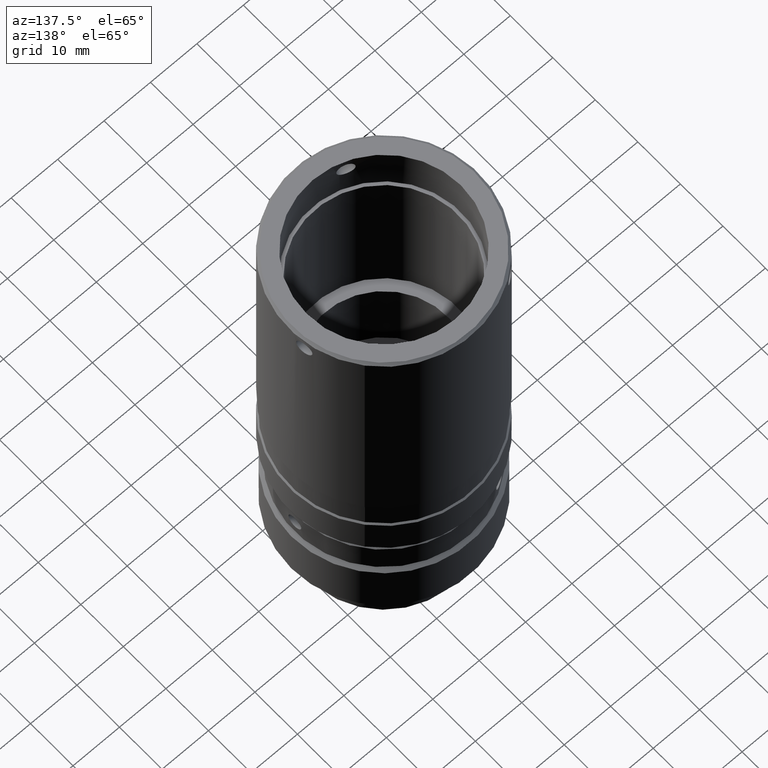
[diagram: clean part render]
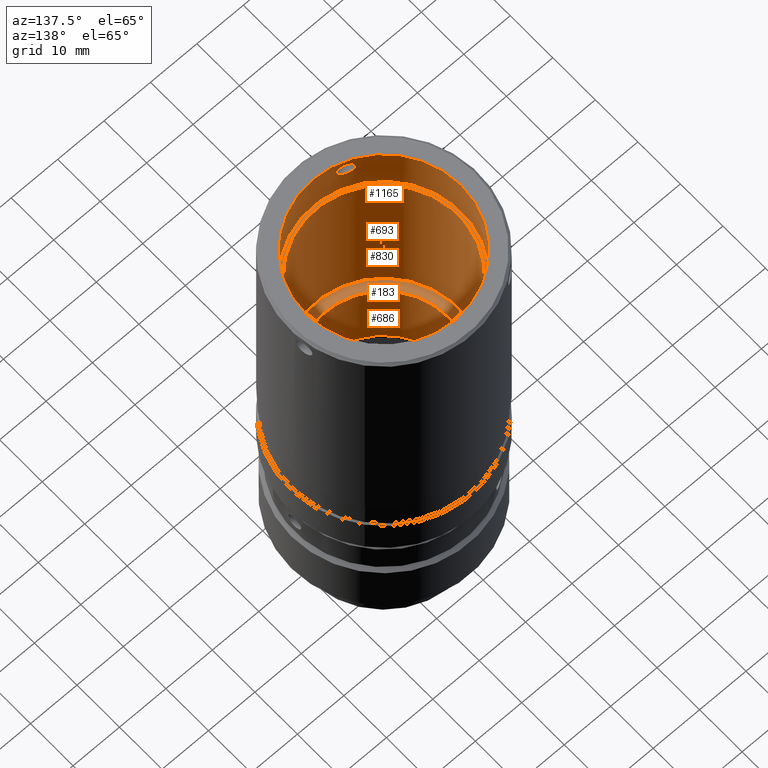
[diagram: same view with one multi-face feature highlighted, each face labeled with its STEP entity id]
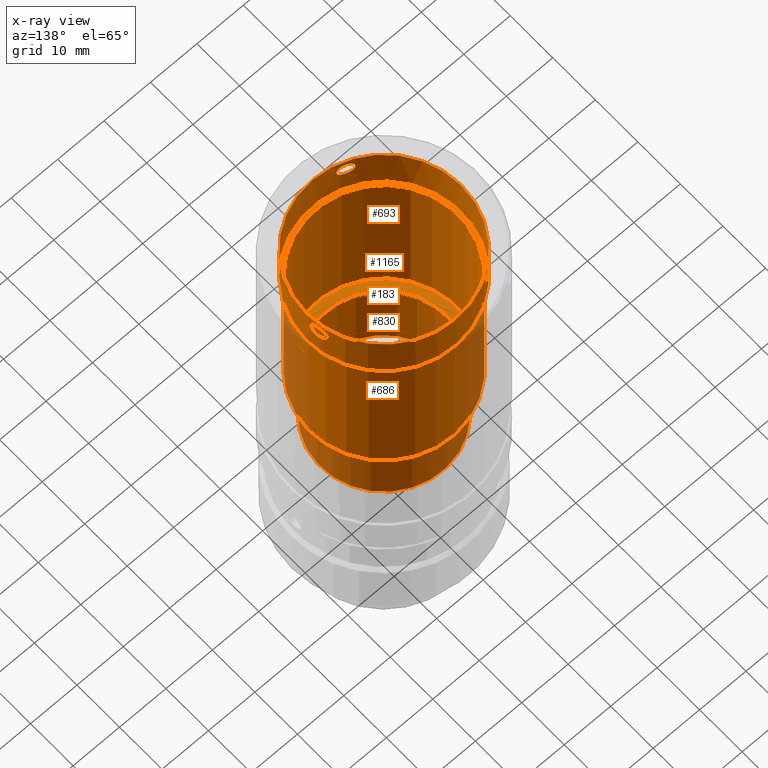
[diagram: x-ray of the same camera — body ghosted, the whole feature saturated]
A machine part, auxiliary view. The highlighted faces form ONE feature: a stepped (counterbored) hole: 3 coaxial cylindrical walls of radii 13.73 -> 16 -> 16.65 mm joined by 2 annular planar shoulder face(s). The faces share edges in the B-rep.
The next image is the same camera in x-ray: the body ghosted and the whole hole feature saturated, so the bore chain is visible through the body.
Their STEP definitions:
[1] entity #1165 (Cylinder):
#1 = AXIS2_PLACEMENT_3D ( 'NONE', #951, #167, #447 ) ;
#5 = CARTESIAN_POINT ( 'NONE',  ( -16.51828049029333556, 14.16450822526402398, 121.9129563630076660 ) ) ;
#15 = CARTESIAN_POINT ( 'NONE',  ( -16.65502733073041597, 14.03487183214818756, 122.1747704586648666 ) ) ;
#21 = CARTESIAN_POINT ( 'NONE',  ( 11.44184538851610711, 3.564772803986836713, 121.6846651315841541 ) ) ;
#22 = CYLINDRICAL_SURFACE ( 'NONE', #1, 16.65000554847506464 ) ;
#28 = ORIENTED_EDGE ( 'NONE', *, *, #539, .T. ) ;
#31 = CARTESIAN_POINT ( 'NONE',  ( -12.65470420375915417, -12.84369286680583144, 123.0035129321938570 ) ) ;
#60 = CARTESIAN_POINT ( 'NONE',  ( -12.45767949100624783, -12.94189497111069542, 123.8322580699297788 ) ) ;
#61 = CARTESIAN_POINT ( 'NONE',  ( 11.34788064212689562, 4.358489469961386753, 124.6428851510953564 ) ) ;
#66 = CARTESIAN_POINT ( 'NONE',  ( -12.28778828712946058, -13.02395595041905985, 121.9128126906651346 ) ) ;
#70 = CARTESIAN_POINT ( 'NONE',  ( -10.11721435386076706, -13.87554442284085177, 121.7590358134496995 ) ) ;
#75 = CARTESIAN_POINT ( 'NONE',  ( -16.13808631315047748, 14.50991051043139102, 121.5199595839617501 ) ) ;
#87 = CARTESIAN_POINT ( 'NONE',  ( 11.42279600205007561, 3.751876672571790028, 124.4354573337637362 ) ) ;
#96 = CARTESIAN_POINT ( 'NONE',  ( 11.48843175204119227, 2.928974647362277306, 123.2216477871856455 ) ) ;
#101 = CARTESIAN_POINT ( 'NONE',  ( -16.81290032041926708, 13.88145187122933777, 123.1125847943831104 ) ) ;
#107 = CARTESIAN_POINT ( 'NONE',  ( 11.02251900689752340, 6.026707606436970011, 122.2711964194934779 ) ) ;
#117 = CARTESIAN_POINT ( 'NONE',  ( 11.16872232122197595, 5.389730260107866044, 124.4452786300293496 ) ) ;
#121 = CARTESIAN_POINT ( 'NONE',  ( -16.78211237068184403, 13.91195282672724076, 122.5708607179613381 ) ) ;
#142 = CARTESIAN_POINT ( 'NONE',  ( -16.56810946495767922, 14.11754763681405045, 121.9962234897293456 ) ) ;
#144 = CARTESIAN_POINT ( 'NONE',  ( -14.28691815058512127, 15.92221627532969919, 122.5762682421971732 ) ) ;
#165 = CIRCLE ( 'NONE', #465, 16.65000554847506820 ) ;
#167 = DIRECTION ( 'NONE',  ( -1.479114197289397135E-31, -9.860761315262647568E-32, 1.000000000000000000 ) ) ;
#174 = CARTESIAN_POINT ( 'NONE',  ( -9.618933029752739117, -14.02328852374676416, 122.5708607179612954 ) ) ;
#182 = CARTESIAN_POINT ( 'NONE',  ( 11.48359860026417856, 3.013636779100687058, 122.4714563049059990 ) ) ;
#188 = CARTESIAN_POINT ( 'NONE',  ( -9.787687474893122186, -13.97505000340628101, 123.8300778330055323 ) ) ;
#195 = CARTESIAN_POINT ( 'NONE',  ( -12.61610345815081402, -12.86339835504549711, 123.4361688477467425 ) ) ;
#199 = CARTESIAN_POINT ( 'NONE',  ( -15.23860227223282671, 15.24870010592778513, 121.3970938603859935 ) ) ;
#203 = CARTESIAN_POINT ( 'NONE',  ( -14.24266697857398434, 15.95120995502282568, 123.0035129321938570 ) ) ;
#204 = CARTESIAN_POINT ( 'NONE',  ( -10.36710146585854275, -13.79509865079461584, 121.5715692927523151 ) ) ;
#208 = CARTESIAN_POINT ( 'NONE',  ( -14.42515141852480909, 15.83040458989047927, 122.1769506893743653 ) ) ;
#218 = CARTESIAN_POINT ( 'NONE',  ( -15.74665539990729002, 14.84394187216940075, 121.3641407520697015 ) ) ;
#233 = B_SPLINE_CURVE_WITH_KNOTS ( 'NONE', 3,
 ( #1038, #792, #1329, #144, #415, #1523, #208, #1259, #618, #972, #1131, #199, #860, #600, #218, #332, #728, #75, #1286, #1415, #364, #5, #142, #15, #1148, #121, #1451, #101, #672, #1192, #545, #878, #782, #235, #505, #755, #632, #262, #252, #1684, #907, #1016, #1691, #1306, #641, #1553, #402, #372, #652, #886, #774, #1424, #1562, #244 ),
 .UNSPECIFIED., .T., .F.,
 ( 4, 2, 2, 2, 2, 2, 2, 2, 2, 2, 2, 2, 2, 2, 2, 2, 2, 2, 2, 2, 2, 2, 2, 2, 2, 2, 4 ),
 ( 0.000000000000000000, 0.0003225425956083251820, 0.0006450851912166503640, 0.0009676277868249754917, 0.001290170382433300728, 0.001935255573649946863, 0.002580340764866593216, 0.002902883360474915742, 0.003225425956083239135, 0.003547968551691562094, 0.003870511147299884620, 0.004193053742908207579, 0.004515596338516530972, 0.005160681529733175156, 0.005483224125341497682, 0.005805766720949820207, 0.006128309316558142733, 0.006450851912166466993, 0.007095937103383132862, 0.007741022294599798730, 0.008063564890208133398, 0.008386107485816467200, 0.008708650081424801001, 0.009031192677033136537, 0.009353735272641470339, 0.009676277868249805875, 0.01032136305946643705 ),
 .UNSPECIFIED. ) ;
#235 = CARTESIAN_POINT ( 'NONE',  ( -16.56893067243117201, 14.11677247138996982, 124.0093731942755539 ) ) ;
#239 = CARTESIAN_POINT ( 'NONE',  ( 10.98108510855853659, 6.189741960325950920, 122.7853832564583172 ) ) ;
#244 = CARTESIAN_POINT ( 'NONE',  ( -14.24266697857398789, 15.95120995502282213, 123.0035129321938285 ) ) ;
#249 = CARTESIAN_POINT ( 'NONE',  ( 10.98379511789742224, 6.179325824228745212, 123.2198161165571548 ) ) ;
#252 = CARTESIAN_POINT ( 'NONE',  ( -15.74780144373081114, 14.84436439160121424, 124.6533602341241505 ) ) ;
#262 = CARTESIAN_POINT ( 'NONE',  ( -15.91417333944377610, 14.70467609564725819, 124.6099321599281353 ) ) ;
#275 = ORIENTED_EDGE ( 'NONE', *, *, #1393, .T. ) ;
#282 = CARTESIAN_POINT ( 'NONE',  ( -9.969802914784677839, -13.92100507200719406, 124.0942150547119525 ) ) ;
#309 = CARTESIAN_POINT ( 'NONE',  ( -12.34975124005389624, -12.99425448484450740, 124.0108045017298082 ) ) ;
#310 = CARTESIAN_POINT ( 'NONE',  ( 11.48843175204119582, 2.928974647362279526, 122.8944455046979698 ) ) ;
#314 = CARTESIAN_POINT ( 'NONE',  ( -12.50447304103715140, -12.91883183508661226, 122.2716881500049908 ) ) ;
#315 = CARTESIAN_POINT ( 'NONE',  ( 11.46108620349991725, 3.336864694023068179, 121.9128126906650778 ) ) ;
#320 = VERTEX_POINT ( 'NONE', #31 ) ;
#321 = CARTESIAN_POINT ( 'NONE',  ( -10.19685161026450615, -13.85042246692591839, 121.6909014129368956 ) ) ;
#330 = CARTESIAN_POINT ( 'NONE',  ( -10.64789409950884114, -13.69946102907726448, 121.4373528721332320 ) ) ;
#332 = CARTESIAN_POINT ( 'NONE',  ( -15.90893946180416485, 14.70800616934501370, 121.4062145115069455 ) ) ;
#345 = CARTESIAN_POINT ( 'NONE',  ( 11.37800802314552939, 4.142734836743879434, 121.3970938603859935 ) ) ;
#361 = DIRECTION ( 'NONE',  ( -1.479114197289397135E-31, -9.860761315262647568E-32, 1.000000000000000000 ) ) ;
#364 = CARTESIAN_POINT ( 'NONE',  ( -16.40502156398401468, 14.26960506118317085, 121.7590358134497279 ) ) ;
#368 = CARTESIAN_POINT ( 'NONE',  ( 10.99210597014261204, 6.147827432598806041, 122.5708607179613097 ) ) ;
#372 = CARTESIAN_POINT ( 'NONE',  ( -14.58203976653741840, 15.72372478401115181, 124.0940714188118221 ) ) ;
#376 = CARTESIAN_POINT ( 'NONE',  ( 11.22614366819301424, 5.094807259350069728, 121.4373528721332320 ) ) ;
#402 = CARTESIAN_POINT ( 'NONE',  ( -14.70887075079353679, 15.63548193071625647, 124.2479914378527752 ) ) ;
#413 = CARTESIAN_POINT ( 'NONE',  ( -10.18836597070422734, -13.85360732343341184, 124.3223618686502050 ) ) ;
#415 = CARTESIAN_POINT ( 'NONE',  ( -14.31356995950947564, 15.90469325693438840, 122.4714563049059421 ) ) ;
#429 = CARTESIAN_POINT ( 'NONE',  ( -18.10431408128757624, -8.430711000729862903, 126.0035178494879062 ) ) ;
#433 = EDGE_LOOP ( 'NONE', ( #1132 ) ) ;
#445 = CARTESIAN_POINT ( 'NONE',  ( -12.14817382791321698, -13.08957316473480148, 124.2479914378527326 ) ) ;
#447 = DIRECTION ( 'NONE',  ( 0.7788586556383829684, 0.6271994854407734188, 0.000000000000000000 ) ) ;
#450 = CARTESIAN_POINT ( 'NONE',  ( -9.587499196300271365, -14.03184031039029733, 123.2198161165571406 ) ) ;
#456 = CARTESIAN_POINT ( 'NONE',  ( -9.577123553161364100, -14.03470144150692356, 122.7853832564582603 ) ) ;
#464 = CARTESIAN_POINT ( 'NONE',  ( -11.04617489342003367, -13.55407555005265507, 121.3534372019514649 ) ) ;
#465 = AXIS2_PLACEMENT_3D ( 'NONE', #855, #1672, #1145 ) ;
#483 = CARTESIAN_POINT ( 'NONE',  ( 11.46634545624495161, 3.268352469909720170, 124.0108045017298508 ) ) ;
#490 = CARTESIAN_POINT ( 'NONE',  ( 11.48619683264654157, 2.972256617783967325, 123.4361688477467141 ) ) ;
#494 = DIRECTION ( 'NONE',  ( 0.7788586556383829684, 0.6271994854407734188, 0.000000000000000000 ) ) ;
#500 = CARTESIAN_POINT ( 'NONE',  ( 11.28150367415706690, 4.785100868661289475, 121.3641407520697584 ) ) ;
#505 = CARTESIAN_POINT ( 'NONE',  ( -16.51809736057264288, 14.16467333471804402, 124.0942150547119809 ) ) ;
#520 = CARTESIAN_POINT ( 'NONE',  ( 11.28244260863039017, 4.785882112010408029, 124.6533602341243210 ) ) ;
#539 = EDGE_CURVE ( 'NONE', #1318, #1318, #1513, .T. ) ;
#545 = CARTESIAN_POINT ( 'NONE',  ( -16.75233341741160586, 13.94080538006744163, 123.5355730661664779 ) ) ;
#553 = CARTESIAN_POINT ( 'NONE',  ( 11.42413377462433921, 3.748174837248871683, 121.5617479621205490 ) ) ;
#575 = CARTESIAN_POINT ( 'NONE',  ( -11.82084638319279790, -13.23741635302139130, 124.4870668711100166 ) ) ;
#584 = CARTESIAN_POINT ( 'NONE',  ( -12.60746935459015461, -12.86751866606815575, 122.5762682421972016 ) ) ;
#589 = CARTESIAN_POINT ( 'NONE',  ( 7.831687794426239080, 12.45503882444929999, 116.0035129321938570 ) ) ;
#591 = CARTESIAN_POINT ( 'NONE',  ( 11.38923479570507347, 4.046604424596077720, 124.5696732882671114 ) ) ;
#600 = CARTESIAN_POINT ( 'NONE',  ( -15.66214108384385639, 14.91337405116070869, 121.3534372019514649 ) ) ;
#618 = CARTESIAN_POINT ( 'NONE',  ( -14.58223734666240823, 15.72358299197527209, 121.9128126906651488 ) ) ;
#632 = CARTESIAN_POINT ( 'NONE',  ( -16.21388913630720907, 14.44395565973115048, 124.4452786300293496 ) ) ;
#641 = CARTESIAN_POINT ( 'NONE',  ( -14.92250316223551643, 15.48291671552933124, 124.4354573337636651 ) ) ;
#645 = CARTESIAN_POINT ( 'NONE',  ( 11.11329648755280886, 5.642431097236949356, 121.7590358134497421 ) ) ;
#652 = CARTESIAN_POINT ( 'NONE',  ( -14.52553364648299272, 15.76239375051406633, 124.0108045017298508 ) ) ;
#672 = CARTESIAN_POINT ( 'NONE',  ( -16.80523535188912021, 13.88900622174083921, 123.2198161165571264 ) ) ;
#690 = VERTEX_POINT ( 'NONE', #589 ) ;
#701 = CARTESIAN_POINT ( 'NONE',  ( -11.54834518120464715, -13.35494320709237570, 121.3970938603859082 ) ) ;
#709 = CARTESIAN_POINT ( 'NONE',  ( 11.47838842602549647, 3.096648134860001012, 122.2716881500049908 ) ) ;
#715 = CARTESIAN_POINT ( 'NONE',  ( -10.36377261520673443, -13.79719418425972677, 124.4452786300292644 ) ) ;
#721 = CARTESIAN_POINT ( 'NONE',  ( -12.65470420375915772, -12.84369286680583855, 123.2216477871857023 ) ) ;
#724 = EDGE_LOOP ( 'NONE', ( #1236 ) ) ;
#725 = CARTESIAN_POINT ( 'NONE',  ( -10.45879260299431479, -13.76452443907754564, 121.5199595839617643 ) ) ;
#728 = CARTESIAN_POINT ( 'NONE',  ( -15.98718899897614065, 14.64114550530648629, 121.4373528721332320 ) ) ;
#741 = CARTESIAN_POINT ( 'NONE',  ( 11.16857196133260999, 5.385799624145430009, 121.5715692927522156 ) ) ;
#747 = EDGE_LOOP ( 'NONE', ( #275 ) ) ;
#749 = CARTESIAN_POINT ( 'NONE',  ( 11.03501443146935834, 5.976309056849440360, 122.1747704586648808 ) ) ;
#755 = CARTESIAN_POINT ( 'NONE',  ( -16.35044767019009981, 14.32025561918623069, 124.3223618686501624 ) ) ;
#759 = CARTESIAN_POINT ( 'NONE',  ( 10.99429087494113233, 6.138511299480448713, 123.4307613514948940 ) ) ;
#764 = FACE_BOUND ( 'NONE', #747, .T. ) ;
#769 = CARTESIAN_POINT ( 'NONE',  ( 11.03470740865696875, 5.977562535935455834, 123.8300778330055323 ) ) ;
#774 = CARTESIAN_POINT ( 'NONE',  ( -14.38305769238325205, 15.85854007303605684, 123.7358324190994239 ) ) ;
#782 = CARTESIAN_POINT ( 'NONE',  ( -16.65595936405581412, 14.03397920305010871, 123.8300778330055039 ) ) ;
#792 = CARTESIAN_POINT ( 'NONE',  ( -14.24266697857398434, 15.95120995502282568, 122.8944455046979556 ) ) ;
#798 = CARTESIAN_POINT ( 'NONE',  ( -10.94378770454173555, -13.59255100525140492, 121.3641407520697868 ) ) ;
#828 = CARTESIAN_POINT ( 'NONE',  ( -12.50425437488827285, -12.91893985042671389, 123.7358324190994949 ) ) ;
#829 = CARTESIAN_POINT ( 'NONE',  ( 11.48784901288893145, 2.939720568796745592, 122.7872139434801255 ) ) ;
#835 = CARTESIAN_POINT ( 'NONE',  ( -12.45884146866567654, -12.94132634503245427, 122.1769506893743937 ) ) ;
#844 = CARTESIAN_POINT ( 'NONE',  ( -11.24481821531495562, -13.47720155722496926, 124.6535886623003506 ) ) ;
#849 = CARTESIAN_POINT ( 'NONE',  ( -12.08079366668042987, -13.12124697083545755, 121.6846651315841541 ) ) ;
#855 = CARTESIAN_POINT ( 'NONE',  ( -5.136313143430668582, 2.012163911859718990, 126.0035178494879062 ) ) ;
#860 = CARTESIAN_POINT ( 'NONE',  ( -15.41055538640044631, 15.11594197768352643, 121.3536656305354029 ) ) ;
#864 = CARTESIAN_POINT ( 'NONE',  ( 11.44810514841480398, 3.490582969597829877, 124.2479914378527894 ) ) ;
#873 = CARTESIAN_POINT ( 'NONE',  ( 10.98108534271044157, 6.189741056950814446, 123.1125847943831388 ) ) ;
#878 = CARTESIAN_POINT ( 'NONE',  ( -16.69259942816848152, 13.99868390674403962, 123.7353406405759131 ) ) ;
#881 = CARTESIAN_POINT ( 'NONE',  ( 11.13135886373960659, 5.560902232146156976, 121.6909014129368813 ) ) ;
#886 = CARTESIAN_POINT ( 'NONE',  ( -14.42622485198353033, 15.82968260075791633, 123.8322580699297788 ) ) ;
#890 = CARTESIAN_POINT ( 'NONE',  ( 11.18793948585284070, 5.291105664225442595, 121.5199595839617643 ) ) ;
#901 = CARTESIAN_POINT ( 'NONE',  ( 11.34901266861094626, 4.358029665995005963, 121.3536656305354455 ) ) ;
#907 = CARTESIAN_POINT ( 'NONE',  ( -15.41038757507406842, 15.11473171200740317, 124.6428851510952427 ) ) ;
#926 = CARTESIAN_POINT ( 'NONE',  ( -9.903984811036233182, -13.94075397594935062, 121.9962234897294024 ) ) ;
#933 = VERTEX_POINT ( 'NONE', #429 ) ;
#951 = CARTESIAN_POINT ( 'NONE',  ( -5.136313143430668582, 2.012163911859718990, 126.0035129321938570 ) ) ;
#957 = CARTESIAN_POINT ( 'NONE',  ( -12.28800987269708322, -13.02385573702946964, 124.0940714188117795 ) ) ;
#962 = CARTESIAN_POINT ( 'NONE',  ( -9.739032394488299715, -13.98906707310182718, 122.2711964194934779 ) ) ;
#963 = CARTESIAN_POINT ( 'NONE',  ( 11.47505345689853584, 3.147413490721252760, 122.1769506893743653 ) ) ;
#969 = CARTESIAN_POINT ( 'NONE',  ( -12.64510659323370945, -12.84856116061343023, 122.7872139434801255 ) ) ;
#972 = CARTESIAN_POINT ( 'NONE',  ( -14.76999115212762881, 15.59296590242790437, 121.6846651315841967 ) ) ;
#978 = CARTESIAN_POINT ( 'NONE',  ( -12.65470420375915772, -12.84369286680583500, 123.0035129321938854 ) ) ;
#992 = CARTESIAN_POINT ( 'NONE',  ( 11.44054298564069505, 3.573745500441463108, 124.3161256106788244 ) ) ;
#1001 = CARTESIAN_POINT ( 'NONE',  ( 11.48843175204119404, 2.928974647362278638, 123.0035129321938570 ) ) ;
#1012 = CARTESIAN_POINT ( 'NONE',  ( 11.07890942094411635, 5.793064622585751167, 121.9129563630076518 ) ) ;
#1015 = FACE_OUTER_BOUND ( 'NONE', #433, .T. ) ;
#1016 = CARTESIAN_POINT ( 'NONE',  ( -15.24297303431857387, 15.24429579732448481, 124.6008115399131952 ) ) ;
#1030 = CARTESIAN_POINT ( 'NONE',  ( 11.02246081747813555, 6.026941410406343458, 123.7353406405758989 ) ) ;
#1038 = CARTESIAN_POINT ( 'NONE',  ( -14.24266697857398789, 15.95120995502282213, 123.0035129321938285 ) ) ;
#1050 = CARTESIAN_POINT ( 'NONE',  ( 11.48843175204119582, 2.928974647362279082, 123.0035129321938570 ) ) ;
#1056 = CARTESIAN_POINT ( 'NONE',  ( -9.969568360942750118, -13.92108111227048717, 121.9129563630076660 ) ) ;
#1063 = CARTESIAN_POINT ( 'NONE',  ( 11.48843175204119404, 2.928974647362278638, 123.0035129321938570 ) ) ;
#1089 = CARTESIAN_POINT ( 'NONE',  ( -12.07237188217257362, -13.12460540508669027, 124.3161256106787675 ) ) ;
#1104 = CARTESIAN_POINT ( 'NONE',  ( -10.73942103442755602, -13.66799290821855628, 124.6099321599281069 ) ) ;
#1131 = CARTESIAN_POINT ( 'NONE',  ( -14.91996616509239004, 15.48592617822459516, 121.5617479621206058 ) ) ;
#1132 = ORIENTED_EDGE ( 'NONE', *, *, #1302, .F. ) ;
#1135 = CARTESIAN_POINT ( 'NONE',  ( 11.07896084506534962, 5.792823472868441570, 124.0942150547119240 ) ) ;
#1137 = CARTESIAN_POINT ( 'NONE',  ( -5.136313143430668582, 2.012163911859718990, 116.0035129321938570 ) ) ;
#1145 = DIRECTION ( 'NONE',  ( -0.7788586556383829684, -0.6271994854407731967, 0.000000000000000000 ) ) ;
#1148 = CARTESIAN_POINT ( 'NONE',  ( -16.69242604270118591, 13.99885120224414692, 122.2711964194934637 ) ) ;
#1152 = CARTESIAN_POINT ( 'NONE',  ( 11.06315484570194130, 5.859698074714593474, 121.9962234897293598 ) ) ;
#1162 = CARTESIAN_POINT ( 'NONE',  ( 11.33212337724026675, 4.466726075004260998, 124.6535886623003648 ) ) ;
#1165 = ADVANCED_FACE ( 'NONE', ( #1015, #764, #1343, #1220, #1603 ), #22, .F. ) ;
#1192 = CARTESIAN_POINT ( 'NONE',  ( -16.77513681513556776, 13.91850307634679851, 123.4307613514948940 ) ) ;
#1208 = EDGE_LOOP ( 'NONE', ( #28 ) ) ;
#1220 = FACE_BOUND ( 'NONE', #1208, .T. ) ;
#1225 = CARTESIAN_POINT ( 'NONE',  ( -11.54234555702521448, -13.35652624379087783, 124.6008115399132095 ) ) ;
#1232 = CARTESIAN_POINT ( 'NONE',  ( -12.35077213999782941, -12.99376402758104909, 121.9976548234815397 ) ) ;
#1236 = ORIENTED_EDGE ( 'NONE', *, *, #1578, .T. ) ;
#1255 = CARTESIAN_POINT ( 'NONE',  ( -11.91310703982391139, -13.19760927989417709, 121.5617479621205490 ) ) ;
#1259 = CARTESIAN_POINT ( 'NONE',  ( -14.52459844806141120, 15.76303264716849917, 121.9976548234815681 ) ) ;
#1273 = CARTESIAN_POINT ( 'NONE',  ( 11.00220353766414227, 6.107611825898570324, 123.5355730661664495 ) ) ;
#1286 = CARTESIAN_POINT ( 'NONE',  ( -16.21040992576603301, 14.44579076222846936, 121.5715692927522866 ) ) ;
#1299 = CARTESIAN_POINT ( 'NONE',  ( 11.12987421060235427, 5.569843439826462905, 124.3223618686501766 ) ) ;
#1302 = EDGE_CURVE ( 'NONE', #690, #690, #1649, .T. ) ;
#1306 = CARTESIAN_POINT ( 'NONE',  ( -15.00057042998640355, 15.42592964237582187, 124.4870668711100450 ) ) ;
#1318 = VERTEX_POINT ( 'NONE', #1050 ) ;
#1329 = CARTESIAN_POINT ( 'NONE',  ( -14.25168184994716647, 15.94533232739595441, 122.7872139434801397 ) ) ;
#1336 = CARTESIAN_POINT ( 'NONE',  ( -9.658809550544512845, -14.01192547038672309, 123.5355730661664921 ) ) ;
#1343 = FACE_OUTER_BOUND ( 'NONE', #724, .T. ) ;
#1364 = CARTESIAN_POINT ( 'NONE',  ( -12.65470420375915772, -12.84369286680583500, 123.0035129321938854 ) ) ;
#1365 = CARTESIAN_POINT ( 'NONE',  ( 11.48544807488332786, 2.981794126317726779, 122.5762682421972016 ) ) ;
#1370 = CARTESIAN_POINT ( 'NONE',  ( -11.34739671250245685, -13.43747990809926129, 121.3536656305353887 ) ) ;
#1378 = CARTESIAN_POINT ( 'NONE',  ( -11.63720994648068086, -13.31660067125754843, 124.5696732882670403 ) ) ;
#1386 = CARTESIAN_POINT ( 'NONE',  ( -10.74492190166608729, -13.66512527407123301, 121.4062145115069171 ) ) ;
#1393 = EDGE_CURVE ( 'NONE', #1610, #1610, #233, .T. ) ;
#1402 = CARTESIAN_POINT ( 'NONE',  ( 11.47496491269783903, 3.148704105932054631, 123.8322580699297646 ) ) ;
#1407 = ORIENTED_EDGE ( 'NONE', *, *, #1485, .T. ) ;
#1415 = CARTESIAN_POINT ( 'NONE',  ( -16.34344668376706267, 14.32601197035905294, 121.6909014129368671 ) ) ;
#1419 = CARTESIAN_POINT ( 'NONE',  ( 11.29937654697192784, 4.677193234471229033, 121.3534372019514649 ) ) ;
#1424 = CARTESIAN_POINT ( 'NONE',  ( -14.27903280478768089, 15.92763347284081199, 123.4361688477467425 ) ) ;
#1436 = CARTESIAN_POINT ( 'NONE',  ( 11.24465494357937523, 4.999808548150583398, 124.6099321599281637 ) ) ;
#1451 = CARTESIAN_POINT ( 'NONE',  ( -16.81290098568912939, 13.88145121676026861, 122.7853832564583172 ) ) ;
#1463 = CARTESIAN_POINT ( 'NONE',  ( -9.577124452583142045, -14.03470119260086335, 123.1125847943831531 ) ) ;
#1485 = EDGE_CURVE ( 'NONE', #320, #320, #1638, .T. ) ;
#1495 = CARTESIAN_POINT ( 'NONE',  ( -11.90923227010650187, -13.19830165252183640, 124.4354573337636793 ) ) ;
#1499 = CARTESIAN_POINT ( 'NONE',  ( -12.65470420375915594, -12.84369286680583322, 122.8944455046979840 ) ) ;
#1500 = CARTESIAN_POINT ( 'NONE',  ( 11.46643115776728727, 3.267223115991833460, 121.9976548234815539 ) ) ;
#1506 = CARTESIAN_POINT ( 'NONE',  ( -9.788926531030902822, -13.97468915341833728, 122.1747704586648666 ) ) ;
#1511 = CARTESIAN_POINT ( 'NONE',  ( -10.94358059519152526, -13.59375476803233340, 124.6533602341241931 ) ) ;
#1513 = B_SPLINE_CURVE_WITH_KNOTS ( 'NONE', 3,
 ( #1063, #310, #829, #1365, #182, #709, #963, #1500, #315, #21, #553, #345, #901, #1419, #500, #1557, #376, #890, #741, #881, #645, #1012, #1152, #749, #107, #368, #239, #873, #249, #759, #1273, #1030, #769, #1528, #1135, #1299, #117, #1436, #520, #1162, #61, #1567, #591, #1663, #87, #992, #864, #1539, #483, #1402, #1671, #490, #96, #1001 ),
 .UNSPECIFIED., .T., .F.,
 ( 4, 2, 2, 2, 2, 2, 2, 2, 2, 2, 2, 2, 2, 2, 2, 2, 2, 2, 2, 2, 2, 2, 2, 2, 2, 2, 4 ),
 ( 0.000000000000000000, 0.0003225425956083208994, 0.0006450851912166417988, 0.0009676277868249625897, 0.001290170382433283598, 0.001935255573649925830, 0.002580340764866568496, 0.002902883360474888853, 0.003225425956083209211, 0.003547968551691529568, 0.003870511147299849925, 0.004193053742908169415, 0.004515596338516490206, 0.005160681529733130053, 0.005483224125341450844, 0.005805766720949770768, 0.006128309316558090691, 0.006450851912166410615, 0.007095937103383079952, 0.007741022294599747555, 0.008063564890208081357, 0.008386107485816415158, 0.008708650081424748959, 0.009031192677033082761, 0.009353735272641416562, 0.009676277868249748629, 0.01032136305946645440 ),
 .UNSPECIFIED. ) ;
#1523 = CARTESIAN_POINT ( 'NONE',  ( -14.38285481528029131, 15.85867543580588013, 122.2716881500049624 ) ) ;
#1528 = CARTESIAN_POINT ( 'NONE',  ( 11.06289413648930697, 5.860796843960454083, 124.0093731942755682 ) ) ;
#1536 = AXIS2_PLACEMENT_3D ( 'NONE', #1137, #361, #494 ) ;
#1539 = CARTESIAN_POINT ( 'NONE',  ( 11.46111020894254473, 3.336622688597592479, 124.0940714188117511 ) ) ;
#1553 = CARTESIAN_POINT ( 'NONE',  ( -14.77711053376006944, 15.58735164022450270, 124.3161256106787675 ) ) ;
#1557 = CARTESIAN_POINT ( 'NONE',  ( 11.24492193317828992, 4.993610840305502840, 121.4062145115069740 ) ) ;
#1562 = CARTESIAN_POINT ( 'NONE',  ( -14.24266697857399500, 15.95120995502281502, 123.2216477871855744 ) ) ;
#1567 = CARTESIAN_POINT ( 'NONE',  ( 11.37637916105182967, 4.148722182045679219, 124.6008115399132237 ) ) ;
#1578 = EDGE_CURVE ( 'NONE', #933, #933, #165, .T. ) ;
#1594 = CARTESIAN_POINT ( 'NONE',  ( -9.628093490097541007, -14.02052264024796102, 123.4307613514948798 ) ) ;
#1603 = FACE_BOUND ( 'NONE', #1630, .T. ) ;
#1610 = VERTEX_POINT ( 'NONE', #203 ) ;
#1623 = CARTESIAN_POINT ( 'NONE',  ( -9.738800819601625136, -13.98913358157110309, 123.7353406405758989 ) ) ;
#1630 = EDGE_LOOP ( 'NONE', ( #1407 ) ) ;
#1632 = CARTESIAN_POINT ( 'NONE',  ( -11.34643249734477877, -13.43672944638950995, 124.6428851510952427 ) ) ;
#1638 = B_SPLINE_CURVE_WITH_KNOTS ( 'NONE', 3,
 ( #978, #1499, #969, #584, #1642, #314, #835, #1232, #66, #849, #1255, #701, #1370, #464, #798, #1386, #330, #725, #204, #321, #70, #1056, #926, #1506, #962, #174, #456, #1463, #450, #1594, #1336, #1623, #188, #1647, #282, #413, #715, #1104, #1511, #844, #1632, #1225, #1378, #575, #1495, #1089, #445, #957, #309, #60, #828, #195, #721, #1364 ),
 .UNSPECIFIED., .T., .F.,
 ( 4, 2, 2, 2, 2, 2, 2, 2, 2, 2, 2, 2, 2, 2, 2, 2, 2, 2, 2, 2, 2, 2, 2, 2, 2, 2, 4 ),
 ( 0.000000000000000000, 0.0003225425956083176468, 0.0006450851912166352935, 0.0009676277868249529403, 0.001290170382433270587, 0.001935255573649904580, 0.002580340764866538572, 0.002902883360474858496, 0.003225425956083178853, 0.003547968551691498343, 0.003870511147299818700, 0.004193053742908138190, 0.004515596338516458981, 0.005160681529733097093, 0.005483224125341417017, 0.005805766720949736941, 0.006128309316558057732, 0.006450851912166376788, 0.007095937103383045258, 0.007741022294599714595, 0.008063564890208051866, 0.008386107485816387402, 0.008708650081424726408, 0.009031192677033063679, 0.009353735272641399215, 0.009676277868249736486, 0.01032136305946644919 ),
 .UNSPECIFIED. ) ;
#1642 = CARTESIAN_POINT ( 'NONE',  ( -12.57896807104664383, -12.88183830045579548, 122.4714563049060274 ) ) ;
#1647 = CARTESIAN_POINT ( 'NONE',  ( -9.902902894350107843, -13.94107757977114304, 124.0093731942756108 ) ) ;
#1649 = CIRCLE ( 'NONE', #1536, 16.65000554847506464 ) ;
#1663 = CARTESIAN_POINT ( 'NONE',  ( 11.41247738288726055, 3.847978446224848526, 124.4870668711100450 ) ) ;
#1671 = CARTESIAN_POINT ( 'NONE',  ( 11.47837263697957866, 3.096891512969926374, 123.7358324190994949 ) ) ;
#1672 = DIRECTION ( 'NONE',  ( -1.479114197289397135E-31, -9.860761315262647568E-32, 1.000000000000000000 ) ) ;
#1684 = CARTESIAN_POINT ( 'NONE',  ( -15.49624459221727335, 15.04696721779999002, 124.6535886623003648 ) ) ;
#1691 = CARTESIAN_POINT ( 'NONE',  ( -15.16096427951633707, 15.30648798224075513, 124.5696732882670119 ) ) ;
[2] entity #830 (Cylinder):
#124 = DIRECTION ( 'NONE',  ( 0.7788586556383829684, 0.6271994854407733078, 0.000000000000000000 ) ) ;
#152 = DIRECTION ( 'NONE',  ( -1.479114197289397135E-31, -9.860761315262647568E-32, 1.000000000000000000 ) ) ;
#207 = AXIS2_PLACEMENT_3D ( 'NONE', #889, #1391, #644 ) ;
#285 = FACE_OUTER_BOUND ( 'NONE', #700, .T. ) ;
#559 = CIRCLE ( 'NONE', #1627, 16.00000259550325410 ) ;
#636 = EDGE_CURVE ( 'NONE', #966, #966, #785, .T. ) ;
#644 = DIRECTION ( 'NONE',  ( 0.7788586556383829684, 0.6271994854407733078, 0.000000000000000000 ) ) ;
#700 = EDGE_LOOP ( 'NONE', ( #1310 ) ) ;
#785 = CIRCLE ( 'NONE', #207, 16.00000259550325410 ) ;
#801 = FACE_OUTER_BOUND ( 'NONE', #1600, .T. ) ;
#830 = ADVANCED_FACE ( 'NONE', ( #801, #285 ), #1445, .F. ) ;
#851 = ORIENTED_EDGE ( 'NONE', *, *, #636, .F. ) ;
#889 = CARTESIAN_POINT ( 'NONE',  ( -5.136313143430668582, 2.012163911859718990, 81.00406304106830646 ) ) ;
#966 = VERTEX_POINT ( 'NONE', #1087 ) ;
#974 = AXIS2_PLACEMENT_3D ( 'NONE', #1338, #152, #124 ) ;
#1075 = VERTEX_POINT ( 'NONE', #1344 ) ;
#1087 = CARTESIAN_POINT ( 'NONE',  ( 7.325427368313634169, 12.04735730681039563, 81.00406304106830646 ) ) ;
#1098 = CARTESIAN_POINT ( 'NONE',  ( -5.136313143430668582, 2.012163911859718990, 116.0035129321938570 ) ) ;
#1108 = DIRECTION ( 'NONE',  ( 0.7788586556383829684, 0.6271994854407733078, 0.000000000000000000 ) ) ;
#1241 = DIRECTION ( 'NONE',  ( -1.479114197289397135E-31, -9.860761315262647568E-32, 1.000000000000000000 ) ) ;
#1310 = ORIENTED_EDGE ( 'NONE', *, *, #1526, .T. ) ;
#1338 = CARTESIAN_POINT ( 'NONE',  ( -5.136313143430668582, 2.012163911859718990, 126.0035129321938570 ) ) ;
#1344 = CARTESIAN_POINT ( 'NONE',  ( 7.325427368313634169, 12.04735730681039563, 116.0035129321938570 ) ) ;
#1391 = DIRECTION ( 'NONE',  ( -1.479114197289397135E-31, -9.860761315262647568E-32, 1.000000000000000000 ) ) ;
#1445 = CYLINDRICAL_SURFACE ( 'NONE', #974, 16.00000259550325410 ) ;
#1526 = EDGE_CURVE ( 'NONE', #1075, #1075, #559, .T. ) ;
#1600 = EDGE_LOOP ( 'NONE', ( #851 ) ) ;
#1627 = AXIS2_PLACEMENT_3D ( 'NONE', #1098, #1241, #1108 ) ;
[3] entity #686 (Cylinder):
#26 = ORIENTED_EDGE ( 'NONE', *, *, #1660, .T. ) ;
#86 = CYLINDRICAL_SURFACE ( 'NONE', #469, 13.73000259230014031 ) ;
#150 = CARTESIAN_POINT ( 'NONE',  ( 5.557418217519731307, 10.62361447285084992, 81.00406304106830646 ) ) ;
#241 = DIRECTION ( 'NONE',  ( -1.479114197289397135E-31, -9.860761315262647568E-32, 1.000000000000000000 ) ) ;
#280 = VERTEX_POINT ( 'NONE', #1351 ) ;
#461 = EDGE_LOOP ( 'NONE', ( #1149 ) ) ;
#469 = AXIS2_PLACEMENT_3D ( 'NONE', #620, #1000, #1537 ) ;
#583 = CIRCLE ( 'NONE', #605, 13.73000259230014031 ) ;
#605 = AXIS2_PLACEMENT_3D ( 'NONE', #1337, #1454, #1465 ) ;
#620 = CARTESIAN_POINT ( 'NONE',  ( -5.136313143430668582, 2.012163911859718990, 126.0035129321938570 ) ) ;
#686 = ADVANCED_FACE ( 'NONE', ( #768, #1272 ), #86, .F. ) ;
#734 = AXIS2_PLACEMENT_3D ( 'NONE', #1656, #241, #1430 ) ;
#768 = FACE_OUTER_BOUND ( 'NONE', #461, .T. ) ;
#1000 = DIRECTION ( 'NONE',  ( -1.479114197289397135E-31, -9.860761315262647568E-32, 1.000000000000000000 ) ) ;
#1149 = ORIENTED_EDGE ( 'NONE', *, *, #1366, .F. ) ;
#1272 = FACE_OUTER_BOUND ( 'NONE', #1447, .T. ) ;
#1337 = CARTESIAN_POINT ( 'NONE',  ( -5.136313143430668582, 2.012163911859718990, 64.39604376075361358 ) ) ;
#1351 = CARTESIAN_POINT ( 'NONE',  ( 5.557418217519731307, 10.62361447285084992, 64.39604376075361358 ) ) ;
#1366 = EDGE_CURVE ( 'NONE', #280, #280, #583, .T. ) ;
#1374 = CIRCLE ( 'NONE', #734, 13.73000259230014031 ) ;
#1430 = DIRECTION ( 'NONE',  ( 0.7788586556383829684, 0.6271994854407733078, 0.000000000000000000 ) ) ;
#1447 = EDGE_LOOP ( 'NONE', ( #26 ) ) ;
#1454 = DIRECTION ( 'NONE',  ( -1.479114197289397135E-31, -9.860761315262647568E-32, 1.000000000000000000 ) ) ;
#1465 = DIRECTION ( 'NONE',  ( 0.7788586556383829684, 0.6271994854407733078, 0.000000000000000000 ) ) ;
#1537 = DIRECTION ( 'NONE',  ( 0.7788586556383829684, 0.6271994854407733078, 0.000000000000000000 ) ) ;
#1641 = VERTEX_POINT ( 'NONE', #150 ) ;
#1656 = CARTESIAN_POINT ( 'NONE',  ( -5.136313143430668582, 2.012163911859718990, 81.00406304106830646 ) ) ;
#1660 = EDGE_CURVE ( 'NONE', #1641, #1641, #1374, .T. ) ;
[4] entity #693 (Plane):
#25 = FACE_BOUND ( 'NONE', #313, .T. ) ;
#43 = ORIENTED_EDGE ( 'NONE', *, *, #1526, .F. ) ;
#77 = AXIS2_PLACEMENT_3D ( 'NONE', #1455, #683, #1330 ) ;
#313 = EDGE_LOOP ( 'NONE', ( #43 ) ) ;
#358 = FACE_OUTER_BOUND ( 'NONE', #387, .T. ) ;
#361 = DIRECTION ( 'NONE',  ( -1.479114197289397135E-31, -9.860761315262647568E-32, 1.000000000000000000 ) ) ;
#387 = EDGE_LOOP ( 'NONE', ( #1580 ) ) ;
#494 = DIRECTION ( 'NONE',  ( 0.7788586556383829684, 0.6271994854407734188, 0.000000000000000000 ) ) ;
#559 = CIRCLE ( 'NONE', #1627, 16.00000259550325410 ) ;
#589 = CARTESIAN_POINT ( 'NONE',  ( 7.831687794426239080, 12.45503882444929999, 116.0035129321938570 ) ) ;
#683 = DIRECTION ( 'NONE',  ( 1.444179187527853431E-31, 9.579436584675309043E-32, -1.000000000000000000 ) ) ;
#690 = VERTEX_POINT ( 'NONE', #589 ) ;
#693 = ADVANCED_FACE ( 'NONE', ( #358, #25 ), #1069, .F. ) ;
#1069 = PLANE ( 'NONE',  #77 ) ;
#1075 = VERTEX_POINT ( 'NONE', #1344 ) ;
#1098 = CARTESIAN_POINT ( 'NONE',  ( -5.136313143430668582, 2.012163911859718990, 116.0035129321938570 ) ) ;
#1108 = DIRECTION ( 'NONE',  ( 0.7788586556383829684, 0.6271994854407733078, 0.000000000000000000 ) ) ;
#1137 = CARTESIAN_POINT ( 'NONE',  ( -5.136313143430668582, 2.012163911859718990, 116.0035129321938570 ) ) ;
#1241 = DIRECTION ( 'NONE',  ( -1.479114197289397135E-31, -9.860761315262647568E-32, 1.000000000000000000 ) ) ;
#1302 = EDGE_CURVE ( 'NONE', #690, #690, #1649, .T. ) ;
#1330 = DIRECTION ( 'NONE',  ( -0.7788586556383829684, -0.6271994854407733078, -1.725633230170963324E-31 ) ) ;
#1344 = CARTESIAN_POINT ( 'NONE',  ( 7.325427368313634169, 12.04735730681039563, 116.0035129321938570 ) ) ;
#1455 = CARTESIAN_POINT ( 'NONE',  ( -18.10431408128757624, -8.430711000729862903, 116.0035129321938570 ) ) ;
#1526 = EDGE_CURVE ( 'NONE', #1075, #1075, #559, .T. ) ;
#1536 = AXIS2_PLACEMENT_3D ( 'NONE', #1137, #361, #494 ) ;
#1580 = ORIENTED_EDGE ( 'NONE', *, *, #1302, .T. ) ;
#1627 = AXIS2_PLACEMENT_3D ( 'NONE', #1098, #1241, #1108 ) ;
#1649 = CIRCLE ( 'NONE', #1536, 16.65000554847506464 ) ;
[5] entity #183 (Plane):
#150 = CARTESIAN_POINT ( 'NONE',  ( 5.557418217519731307, 10.62361447285084992, 81.00406304106830646 ) ) ;
#183 = ADVANCED_FACE ( 'NONE', ( #535, #1048 ), #1227, .F. ) ;
#191 = CARTESIAN_POINT ( 'NONE',  ( -15.83004450438081001, -6.599286649131203220, 81.00406304106830646 ) ) ;
#207 = AXIS2_PLACEMENT_3D ( 'NONE', #889, #1391, #644 ) ;
#241 = DIRECTION ( 'NONE',  ( -1.479114197289397135E-31, -9.860761315262647568E-32, 1.000000000000000000 ) ) ;
#365 = ORIENTED_EDGE ( 'NONE', *, *, #1660, .F. ) ;
#420 = EDGE_LOOP ( 'NONE', ( #365 ) ) ;
#535 = FACE_OUTER_BOUND ( 'NONE', #778, .T. ) ;
#636 = EDGE_CURVE ( 'NONE', #966, #966, #785, .T. ) ;
#644 = DIRECTION ( 'NONE',  ( 0.7788586556383829684, 0.6271994854407733078, 0.000000000000000000 ) ) ;
#734 = AXIS2_PLACEMENT_3D ( 'NONE', #1656, #241, #1430 ) ;
#778 = EDGE_LOOP ( 'NONE', ( #1622 ) ) ;
#785 = CIRCLE ( 'NONE', #207, 16.00000259550325410 ) ;
#831 = DIRECTION ( 'NONE',  ( -0.7788586556383829684, -0.6271994854407733078, -1.725633230170963324E-31 ) ) ;
#889 = CARTESIAN_POINT ( 'NONE',  ( -5.136313143430668582, 2.012163911859718990, 81.00406304106830646 ) ) ;
#966 = VERTEX_POINT ( 'NONE', #1087 ) ;
#1048 = FACE_BOUND ( 'NONE', #420, .T. ) ;
#1087 = CARTESIAN_POINT ( 'NONE',  ( 7.325427368313634169, 12.04735730681039563, 81.00406304106830646 ) ) ;
#1227 = PLANE ( 'NONE',  #1532 ) ;
#1229 = DIRECTION ( 'NONE',  ( 1.444179187527853431E-31, 9.579436584675309043E-32, -1.000000000000000000 ) ) ;
#1374 = CIRCLE ( 'NONE', #734, 13.73000259230014031 ) ;
#1391 = DIRECTION ( 'NONE',  ( -1.479114197289397135E-31, -9.860761315262647568E-32, 1.000000000000000000 ) ) ;
#1430 = DIRECTION ( 'NONE',  ( 0.7788586556383829684, 0.6271994854407733078, 0.000000000000000000 ) ) ;
#1532 = AXIS2_PLACEMENT_3D ( 'NONE', #191, #1229, #831 ) ;
#1622 = ORIENTED_EDGE ( 'NONE', *, *, #636, .T. ) ;
#1641 = VERTEX_POINT ( 'NONE', #150 ) ;
#1656 = CARTESIAN_POINT ( 'NONE',  ( -5.136313143430668582, 2.012163911859718990, 81.00406304106830646 ) ) ;
#1660 = EDGE_CURVE ( 'NONE', #1641, #1641, #1374, .T. ) ;